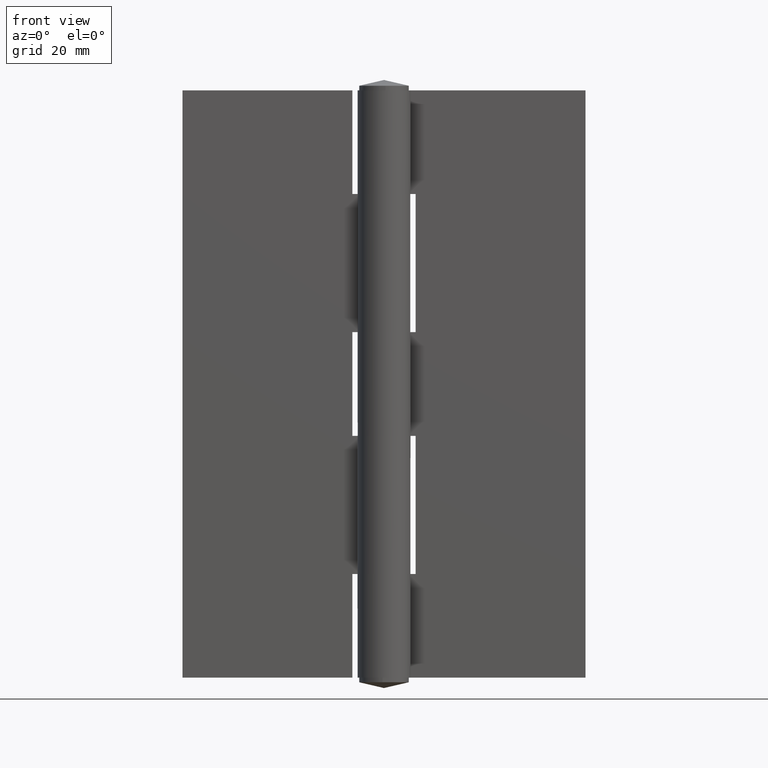
[diagram: clean part render]
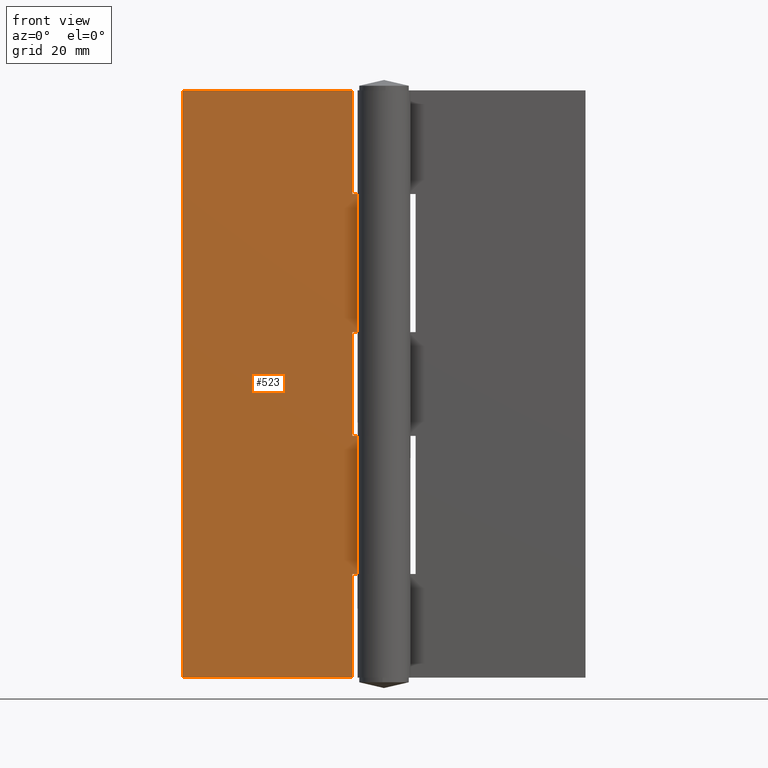
[diagram: same view with one face highlighted and labeled with its STEP entity id]
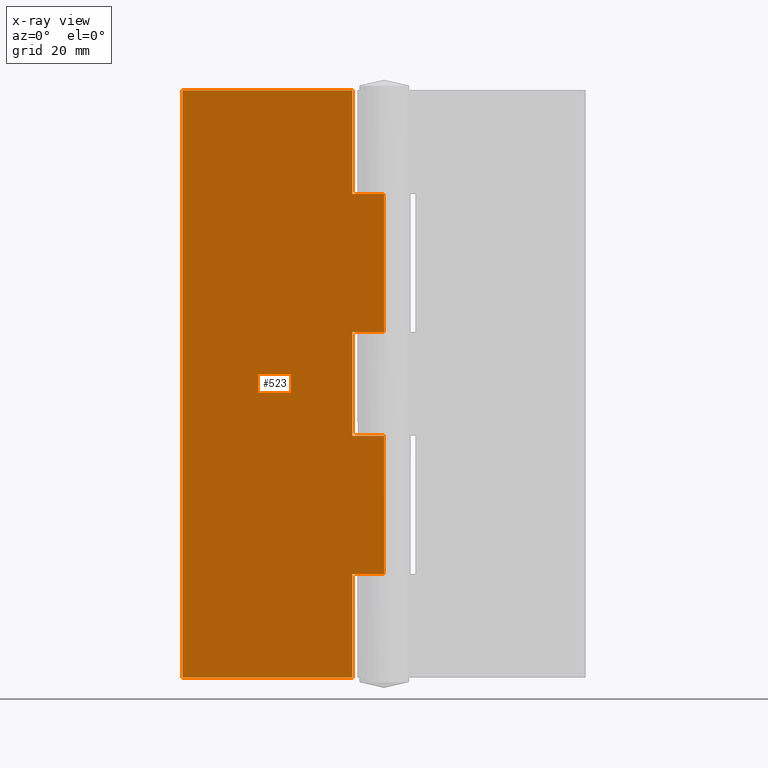
[diagram: x-ray of the same camera — body ghosted, the highlighted face saturated]
A machine part, front view. The second image highlights one B-rep face of the part: STEP entity #523.
The next image is the same camera in x-ray: the body ghosted, the highlighted face saturated — about 0% of this face is hidden behind the body in this view.
In plain terms, the highlighted face is a freeform B-spline surface patch.
Its self-contained STEP definition (entity closure, byte-faithful):
#432=CARTESIAN_POINT('',(-36.748082767526903,2.799998000000000,-5.094899802304211));
#433=CARTESIAN_POINT('',(1.744737066714906,2.799998000000000,-5.094899802304211));
#434=CARTESIAN_POINT('',(-36.748082767526903,2.799998000000000,107.094902538157400));
#435=CARTESIAN_POINT('',(1.744737066714906,2.799998000000000,107.094902538157400));
#436=B_SPLINE_SURFACE_WITH_KNOTS('',1,1,((#432,#434),(#433,#435)),.UNSPECIFIED.,.F.,.F.,.U.,(2,2),(2,2),(0.0,38.492819834241800),(0.0,112.189802340461600),.UNSPECIFIED.);
#437=CARTESIAN_POINT('',(-0.003346639495384,2.799998000000000,84.0));
#438=VERTEX_POINT('',#437);
#439=CARTESIAN_POINT('',(-5.500000000000000,2.799998000000000,84.0));
#440=VERTEX_POINT('',#439);
#441=CARTESIAN_POINT('',(-0.003346639495384,2.799998000000000,84.0));
#442=CARTESIAN_POINT('',(-5.500000000000000,2.799998000000000,84.0));
#443=QUASI_UNIFORM_CURVE('',1,(#441,#442),.UNSPECIFIED.,.F.,.U.);
#444=EDGE_CURVE('',#438,#440,#443,.T.);
#445=ORIENTED_EDGE('',*,*,#444,.T.);
#446=CARTESIAN_POINT('',(-5.500000000000000,2.799998000000000,102.0));
#447=VERTEX_POINT('',#446);
#448=CARTESIAN_POINT('',(-5.500000000000000,2.799998000000000,84.0));
#449=CARTESIAN_POINT('',(-5.500000000000000,2.799998000000000,102.0));
#450=QUASI_UNIFORM_CURVE('',1,(#448,#449),.UNSPECIFIED.,.F.,.U.);
#451=EDGE_CURVE('',#440,#447,#450,.T.);
#452=ORIENTED_EDGE('',*,*,#451,.T.);
#453=CARTESIAN_POINT('',(-35.0,2.799998000000000,102.0));
#454=VERTEX_POINT('',#453);
#455=CARTESIAN_POINT('',(-5.500000000000000,2.799998000000000,102.0));
#456=CARTESIAN_POINT('',(-35.0,2.799998000000000,102.0));
#457=QUASI_UNIFORM_CURVE('',1,(#455,#456),.UNSPECIFIED.,.F.,.U.);
#458=EDGE_CURVE('',#447,#454,#457,.T.);
#459=ORIENTED_EDGE('',*,*,#458,.T.);
#460=CARTESIAN_POINT('',(-35.0,2.799998000000000,0.0));
#461=VERTEX_POINT('',#460);
#462=CARTESIAN_POINT('',(-35.0,2.799998000000000,102.0));
#463=CARTESIAN_POINT('',(-35.0,2.799998000000000,0.0));
#464=QUASI_UNIFORM_CURVE('',1,(#462,#463),.UNSPECIFIED.,.F.,.U.);
#465=EDGE_CURVE('',#454,#461,#464,.T.);
#466=ORIENTED_EDGE('',*,*,#465,.T.);
#467=CARTESIAN_POINT('',(-5.500000000000000,2.799998000000000,0.0));
#468=VERTEX_POINT('',#467);
#469=CARTESIAN_POINT('',(-5.500000000000000,2.799998000000000,0.0));
#470=CARTESIAN_POINT('',(-35.0,2.799998000000000,0.0));
#471=QUASI_UNIFORM_CURVE('',1,(#469,#470),.UNSPECIFIED.,.F.,.U.);
#472=EDGE_CURVE('',#468,#461,#471,.T.);
#473=ORIENTED_EDGE('',*,*,#472,.F.);
#474=CARTESIAN_POINT('',(-5.500000000000000,2.799998000000000,18.0));
#475=VERTEX_POINT('',#474);
#476=CARTESIAN_POINT('',(-5.500000000000000,2.799998000000000,0.0));
#477=CARTESIAN_POINT('',(-5.500000000000000,2.799998000000000,18.0));
#478=QUASI_UNIFORM_CURVE('',1,(#476,#477),.UNSPECIFIED.,.F.,.U.);
#479=EDGE_CURVE('',#468,#475,#478,.T.);
#480=ORIENTED_EDGE('',*,*,#479,.T.);
#481=CARTESIAN_POINT('',(-0.003346639495384,2.799998000000000,18.0));
#482=VERTEX_POINT('',#481);
#483=CARTESIAN_POINT('',(-5.500000000000000,2.799998000000000,18.0));
#484=CARTESIAN_POINT('',(-0.003346639495384,2.799998000000000,18.0));
#485=QUASI_UNIFORM_CURVE('',1,(#483,#484),.UNSPECIFIED.,.F.,.U.);
#486=EDGE_CURVE('',#475,#482,#485,.T.);
#487=ORIENTED_EDGE('',*,*,#486,.T.);
#488=CARTESIAN_POINT('',(-0.003346639495384,2.799998000000000,42.0));
#489=VERTEX_POINT('',#488);
#490=CARTESIAN_POINT('',(-0.003346639495384,2.799998000000000,42.0));
#491=CARTESIAN_POINT('',(-0.003346639495384,2.799998000000000,18.0));
#492=QUASI_UNIFORM_CURVE('',1,(#490,#491),.UNSPECIFIED.,.F.,.U.);
#493=EDGE_CURVE('',#489,#482,#492,.T.);
#494=ORIENTED_EDGE('',*,*,#493,.F.);
#495=CARTESIAN_POINT('',(-5.500000000000000,2.799998000000000,42.0));
#496=VERTEX_POINT('',#495);
#497=CARTESIAN_POINT('',(-5.500000000000000,2.799998000000000,42.0));
#498=CARTESIAN_POINT('',(-0.003346639495384,2.799998000000000,42.0));
#499=QUASI_UNIFORM_CURVE('',1,(#497,#498),.UNSPECIFIED.,.F.,.U.);
#500=EDGE_CURVE('',#496,#489,#499,.T.);
#501=ORIENTED_EDGE('',*,*,#500,.F.);
#502=CARTESIAN_POINT('',(-5.500000000000000,2.799998000000000,60.0));
#503=VERTEX_POINT('',#502);
#504=CARTESIAN_POINT('',(-5.500000000000000,2.799998000000000,60.0));
#505=CARTESIAN_POINT('',(-5.500000000000000,2.799998000000000,42.0));
#506=QUASI_UNIFORM_CURVE('',1,(#504,#505),.UNSPECIFIED.,.F.,.U.);
#507=EDGE_CURVE('',#503,#496,#506,.T.);
#508=ORIENTED_EDGE('',*,*,#507,.F.);
#509=CARTESIAN_POINT('',(-0.003346639495384,2.799998000000000,60.0));
#510=VERTEX_POINT('',#509);
#511=CARTESIAN_POINT('',(-0.003346639495384,2.799998000000000,60.0));
#512=CARTESIAN_POINT('',(-5.500000000000000,2.799998000000000,60.0));
#513=QUASI_UNIFORM_CURVE('',1,(#511,#512),.UNSPECIFIED.,.F.,.U.);
#514=EDGE_CURVE('',#510,#503,#513,.T.);
#515=ORIENTED_EDGE('',*,*,#514,.F.);
#516=CARTESIAN_POINT('',(-0.003346639495384,2.799998000000000,84.0));
#517=CARTESIAN_POINT('',(-0.003346639495384,2.799998000000000,60.0));
#518=QUASI_UNIFORM_CURVE('',1,(#516,#517),.UNSPECIFIED.,.F.,.U.);
#519=EDGE_CURVE('',#438,#510,#518,.T.);
#520=ORIENTED_EDGE('',*,*,#519,.F.);
#521=EDGE_LOOP('',(#445,#452,#459,#466,#473,#480,#487,#494,#501,#508,#515,#520));
#522=FACE_OUTER_BOUND('',#521,.T.);
#523=ADVANCED_FACE('',(#522),#436,.T.);